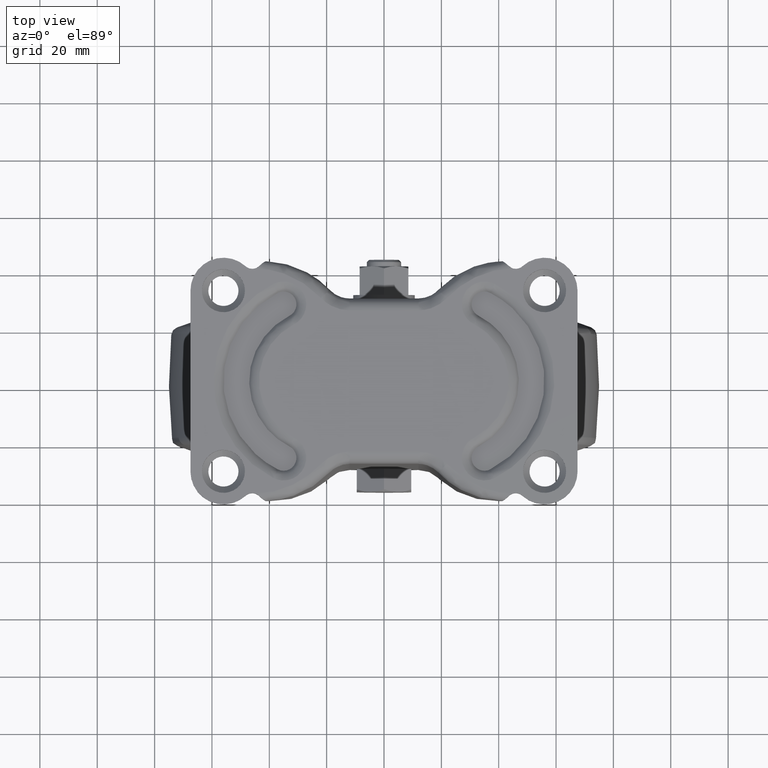
[diagram: clean part render]
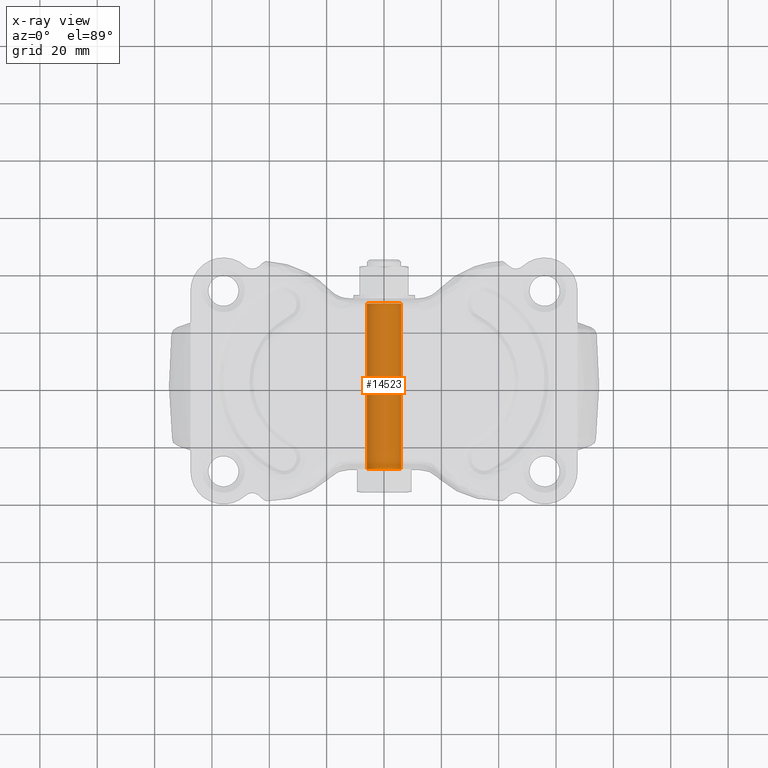
[diagram: x-ray — body ghosted, one internal face saturated and labeled with its STEP entity id]
A machine part, top view, then the same camera in x-ray: the body is ghosted and one INTERNAL B-rep face — a face not visible from any outside direction — is saturated and labeled: STEP entity #14523.
In plain terms, the highlighted face is a freeform B-spline surface patch.
Its self-contained STEP definition (entity closure, byte-faithful):
#14268=CARTESIAN_POINT('',(0.0,-28.850000000000001,-106.0));
#14269=VERTEX_POINT('',#14268);
#14270=CARTESIAN_POINT('',(-5.988808790522700,-28.850000000000009,-111.633708762651910));
#14271=VERTEX_POINT('',#14270);
#14272=CARTESIAN_POINT('',(0.0,-28.850000000000001,-106.0));
#14273=CARTESIAN_POINT('',(-5.644236401302934,-28.850000000000001,-106.000000000000010));
#14274=CARTESIAN_POINT('',(-5.988808790522701,-28.849999999999998,-111.633708762651840));
#14282=(BOUNDED_CURVE()B_SPLINE_CURVE(2,(#14272,#14273,#14274),.UNSPECIFIED.,.F.,.U.)B_SPLINE_CURVE_WITH_KNOTS((3,3),(0.500000000000000,0.739332962237964),.UNSPECIFIED.)CURVE()GEOMETRIC_REPRESENTATION_ITEM()RATIONAL_B_SPLINE_CURVE((1.0,0.719603993287857,0.976072041664619))REPRESENTATION_ITEM(''));
#14283=EDGE_CURVE('',#14269,#14271,#14282,.T.);
#14302=CARTESIAN_POINT('',(5.988808790522699,-28.850000000000001,-112.366291237348090));
#14303=VERTEX_POINT('',#14302);
#14317=CARTESIAN_POINT('',(5.988808790522701,-28.850000000000001,-112.366291237348160));
#14318=CARTESIAN_POINT('',(6.0,-28.850000000000001,-112.183316579861230));
#14319=CARTESIAN_POINT('',(6.0,-28.850000000000001,-112.0));
#14320=CARTESIAN_POINT('',(6.0,-28.850000000000005,-106.0));
#14321=CARTESIAN_POINT('',(0.0,-28.850000000000001,-106.0));
#14329=(BOUNDED_CURVE()B_SPLINE_CURVE(2,(#14317,#14318,#14319,#14320,#14321),.UNSPECIFIED.,.F.,.U.)B_SPLINE_CURVE_WITH_KNOTS((3,2,3),(0.239332962237964,0.250000000000000,0.500000000000000),.UNSPECIFIED.)CURVE()GEOMETRIC_REPRESENTATION_ITEM()RATIONAL_B_SPLINE_CURVE((0.976072041664619,0.987502787898690,1.0,0.707106781186548,1.0))REPRESENTATION_ITEM(''));
#14330=EDGE_CURVE('',#14303,#14269,#14329,.T.);
#14457=CARTESIAN_POINT('',(5.988808790531200,30.292500000000011,-112.366291237209100));
#14458=CARTESIAN_POINT('',(6.355100027740342,30.292500000000011,-106.377482446677940));
#14459=CARTESIAN_POINT('',(0.366291237209142,30.292500000000011,-106.011191209468810));
#14460=CARTESIAN_POINT('',(-5.622517553322059,30.292500000000011,-105.644899972259670));
#14461=CARTESIAN_POINT('',(-5.988808790531200,30.292500000000011,-111.633708762790900));
#14462=CARTESIAN_POINT('',(5.988808790531200,-30.328562500000000,-112.366291237209100));
#14463=CARTESIAN_POINT('',(6.355100027740342,-30.328562499999997,-106.377482446677940));
#14464=CARTESIAN_POINT('',(0.366291237209142,-30.328562500000000,-106.011191209468810));
#14465=CARTESIAN_POINT('',(-5.622517553322059,-30.328562499999997,-105.644899972259670));
#14466=CARTESIAN_POINT('',(-5.988808790531200,-30.328562500000000,-111.633708762790900));
#14474=(BOUNDED_SURFACE()B_SPLINE_SURFACE(2,1,((#14457,#14462),(#14458,#14463),(#14459,#14464),(#14460,#14465),(#14461,#14466)),.UNSPECIFIED.,.F.,.F.,.U.)B_SPLINE_SURFACE_WITH_KNOTS((3,2,3),(2,2),(0.0,9.941125496954287,19.882250993908571),(0.0,60.621062500000022),.UNSPECIFIED.)GEOMETRIC_REPRESENTATION_ITEM()RATIONAL_B_SPLINE_SURFACE(((1.0,1.0),(0.707106781186548,0.707106781186548),(1.0,1.0),(0.707106781186548,0.707106781186548),(1.0,1.0)))REPRESENTATION_ITEM('')SURFACE());
#14475=ORIENTED_EDGE('',*,*,#14330,.F.);
#14476=CARTESIAN_POINT('',(5.988808790522699,28.850000000000001,-112.366291237348090));
#14477=VERTEX_POINT('',#14476);
#14478=CARTESIAN_POINT('',(5.988808790522699,28.850000000000001,-112.366291237348090));
#14479=CARTESIAN_POINT('',(5.988808790522699,-28.850000000000001,-112.366291237348090));
#14480=QUASI_UNIFORM_CURVE('',1,(#14478,#14479),.UNSPECIFIED.,.F.,.U.);
#14481=EDGE_CURVE('',#14477,#14303,#14480,.T.);
#14482=ORIENTED_EDGE('',*,*,#14481,.F.);
#14483=CARTESIAN_POINT('',(0.0,28.850000000000001,-106.0));
#14484=VERTEX_POINT('',#14483);
#14485=CARTESIAN_POINT('',(5.988808790522701,28.850000000000005,-112.366291237348190));
#14486=CARTESIAN_POINT('',(6.0,28.850000000000005,-112.183316579861180));
#14487=CARTESIAN_POINT('',(6.0,28.850000000000001,-112.0));
#14488=CARTESIAN_POINT('',(6.0,28.850000000000005,-106.0));
#14489=CARTESIAN_POINT('',(0.0,28.850000000000001,-106.0));
#14497=(BOUNDED_CURVE()B_SPLINE_CURVE(2,(#14485,#14486,#14487,#14488,#14489),.UNSPECIFIED.,.F.,.U.)B_SPLINE_CURVE_WITH_KNOTS((3,2,3),(0.239332962237964,0.250000000000000,0.500000000000000),.UNSPECIFIED.)CURVE()GEOMETRIC_REPRESENTATION_ITEM()RATIONAL_B_SPLINE_CURVE((0.976072041664620,0.987502787898690,1.0,0.707106781186548,1.0))REPRESENTATION_ITEM(''));
#14498=EDGE_CURVE('',#14477,#14484,#14497,.T.);
#14499=ORIENTED_EDGE('',*,*,#14498,.T.);
#14500=CARTESIAN_POINT('',(-5.988808790522699,28.850000000000001,-111.633708762651910));
#14501=VERTEX_POINT('',#14500);
#14502=CARTESIAN_POINT('',(0.0,28.850000000000001,-106.0));
#14503=CARTESIAN_POINT('',(-5.644236401302904,28.850000000000012,-106.0));
#14504=CARTESIAN_POINT('',(-5.988808790522699,28.850000000000001,-111.633708762651850));
#14512=(BOUNDED_CURVE()B_SPLINE_CURVE(2,(#14502,#14503,#14504),.UNSPECIFIED.,.F.,.U.)B_SPLINE_CURVE_WITH_KNOTS((3,3),(0.500000000000000,0.739332962237963),.UNSPECIFIED.)CURVE()GEOMETRIC_REPRESENTATION_ITEM()RATIONAL_B_SPLINE_CURVE((1.0,0.719603993287858,0.976072041664618))REPRESENTATION_ITEM(''));
#14513=EDGE_CURVE('',#14484,#14501,#14512,.T.);
#14514=ORIENTED_EDGE('',*,*,#14513,.T.);
#14515=CARTESIAN_POINT('',(-5.988808790522699,28.850000000000001,-111.633708762651910));
#14516=CARTESIAN_POINT('',(-5.988808790522700,-28.850000000000009,-111.633708762651910));
#14517=QUASI_UNIFORM_CURVE('',1,(#14515,#14516),.UNSPECIFIED.,.F.,.U.);
#14518=EDGE_CURVE('',#14501,#14271,#14517,.T.);
#14519=ORIENTED_EDGE('',*,*,#14518,.T.);
#14520=ORIENTED_EDGE('',*,*,#14283,.F.);
#14521=EDGE_LOOP('',(#14475,#14482,#14499,#14514,#14519,#14520));
#14522=FACE_OUTER_BOUND('',#14521,.T.);
#14523=ADVANCED_FACE('',(#14522),#14474,.T.);